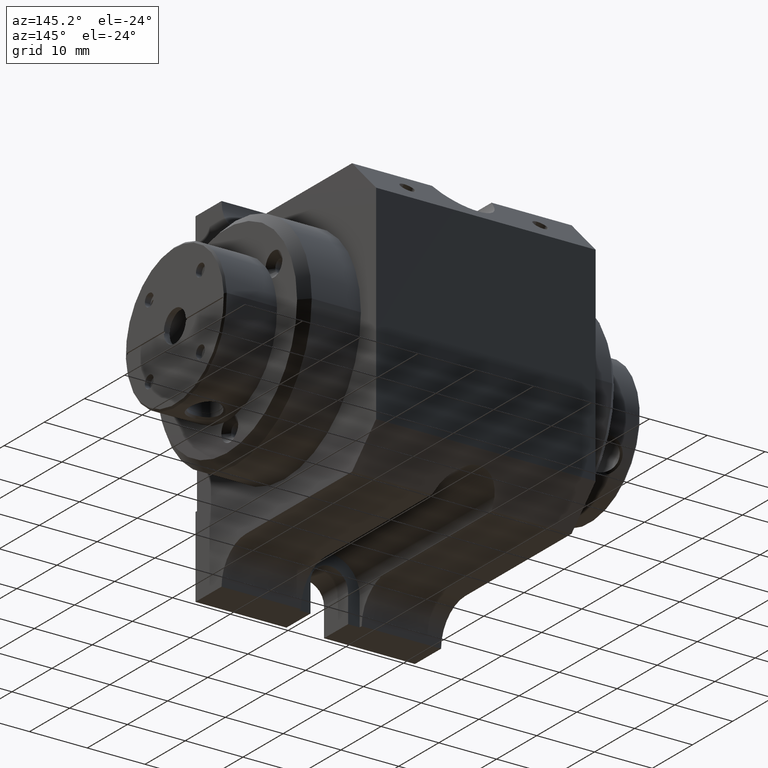
[diagram: clean part render]
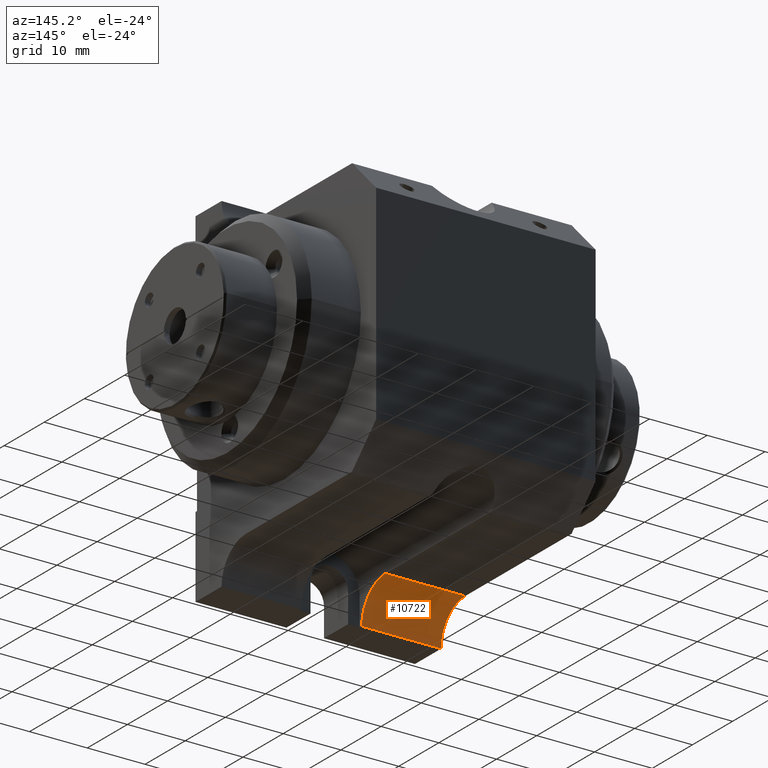
[diagram: same view with one face highlighted and labeled with its STEP entity id]
A machine part, auxiliary view. The second image highlights one B-rep face of the part: STEP entity #10722.
In plain terms, the highlighted cylindrical surface (partial cylindrical patch) has radius 6 mm, axis along (1, 0, 0).
Its self-contained STEP definition (entity closure, byte-faithful):
#79 = CARTESIAN_POINT ( 'NONE',  ( 20.33740049903875047, 9.566528206576277782, -20.51832528981267600 ) ) ;
#263 = VECTOR ( 'NONE', #7345, 1000.000000000000000 ) ;
#740 = CARTESIAN_POINT ( 'NONE',  ( 20.25002206792999360, 7.199067107084253792, -21.33604402028462488 ) ) ;
#845 = EDGE_CURVE ( 'NONE', #4344, #6833, #4483, .T. ) ;
#1096 = CARTESIAN_POINT ( 'NONE',  ( 20.34614003589999953, 10.31035723765000078, -20.47224762488000138 ) ) ;
#1291 = DIRECTION ( 'NONE',  ( 0.000000000000000000, 0.000000000000000000, 1.000000000000000000 ) ) ;
#1671 = DIRECTION ( 'NONE',  ( 1.000000000000000000, 0.000000000000000000, 0.000000000000000000 ) ) ;
#1716 = CYLINDRICAL_SURFACE ( 'NONE', #11092, 5.999999999999998224 ) ;
#2021 = CARTESIAN_POINT ( 'NONE',  ( 20.32676422547693207, 9.185849811624862582, -20.57672468930063658 ) ) ;
#2079 = DIRECTION ( 'NONE',  ( 1.000000000000000000, 0.000000000000000000, 0.000000000000000000 ) ) ;
#2311 = EDGE_CURVE ( 'NONE', #11326, #6833, #10374, .T. ) ;
#2490 = B_SPLINE_CURVE_WITH_KNOTS ( 'NONE', 3,
 ( #7284, #6621, #8792, #3020, #2755, #79, #4665, #10950, #4833, #9872, #4748, #2021, #4004, #5719, #10770, #10864, #7796, #5981, #12515, #3745, #11611, #10610, #2931, #3912, #7710, #8704, #6703, #4999, #5805, #6785, #9789, #5641, #7633, #9705, #12599, #740, #11870 ),
 .UNSPECIFIED., .F., .F.,
 ( 4, 2, 1, 1, 1, 2, 2, 2, 2, 1, 1, 1, 2, 2, 2, 2, 2, 1, 1, 1, 2, 2, 4 ),
 ( 0.000000000000000000, 0.1249999999999928391, 0.1874999999999891476, 0.2187499999999880373, 0.2343749999999882039, 0.2421874999999892308, 0.2499999999999902855, 0.3750000000000108247, 0.4375000000000214273, 0.4687500000000264233, 0.4843750000000285327, 0.4921875000000298650, 0.4960937500000295874, 0.5000000000000293099, 0.6250000000000031086, 0.6874999999999901190, 0.7187499999999834577, 0.7343749999999794609, 0.7421874999999754641, 0.7460937499999751310, 0.7480468749999747979, 0.7499999999999744649, 1.000000000000000000 ),
 .UNSPECIFIED. ) ;
#2690 = AXIS2_PLACEMENT_3D ( 'NONE', #3092, #6130, #1291 ) ;
#2755 = CARTESIAN_POINT ( 'NONE',  ( 20.34025102898273474, 9.696526904399146218, -20.50291406075663758 ) ) ;
#2863 = CARTESIAN_POINT ( 'NONE',  ( 6.500022067927000435, 4.310357237652999274, -26.47224762487999783 ) ) ;
#2931 = CARTESIAN_POINT ( 'NONE',  ( 20.28488944485601309, 8.160041158338053435, -20.86886200144706649 ) ) ;
#3020 = CARTESIAN_POINT ( 'NONE',  ( 20.34213049927548056, 9.806812806831551654, -20.49296725799527863 ) ) ;
#3092 = CARTESIAN_POINT ( 'NONE',  ( 6.500022067927000435, 10.31035723765000078, -26.47224762487999783 ) ) ;
#3739 = LINE ( 'NONE', #5863, #3774 ) ;
#3745 = CARTESIAN_POINT ( 'NONE',  ( 20.30333066680266541, 8.584236663846199988, -20.72589770460598402 ) ) ;
#3774 = VECTOR ( 'NONE', #4320, 1000.000000000000000 ) ;
#3912 = CARTESIAN_POINT ( 'NONE',  ( 20.27599018802462894, 7.955333782621837102, -20.95325206882744951 ) ) ;
#4004 = CARTESIAN_POINT ( 'NONE',  ( 20.31895603595184596, 8.969842779044588710, -20.62344878280552152 ) ) ;
#4016 = ORIENTED_EDGE ( 'NONE', *, *, #10827, .T. ) ;
#4320 = DIRECTION ( 'NONE',  ( 1.000000000000000000, 0.000000000000000000, 0.000000000000000000 ) ) ;
#4344 = VERTEX_POINT ( 'NONE', #2863 ) ;
#4483 = LINE ( 'NONE', #10577, #263 ) ;
#4665 = CARTESIAN_POINT ( 'NONE',  ( 20.33581078041613210, 9.501216098060480064, -20.52700466387139500 ) ) ;
#4748 = CARTESIAN_POINT ( 'NONE',  ( 20.33094844555457570, 9.317398758385513347, -20.55377372439675554 ) ) ;
#4833 = CARTESIAN_POINT ( 'NONE',  ( 20.33460870254140929, 9.454442409207779008, -20.53360306773303634 ) ) ;
#4999 = CARTESIAN_POINT ( 'NONE',  ( 20.26869333404466289, 7.783459756304201171, -21.03029196094754738 ) ) ;
#5641 = CARTESIAN_POINT ( 'NONE',  ( 20.26739978684227594, 7.751026003769890593, -21.04547838642213975 ) ) ;
#5719 = CARTESIAN_POINT ( 'NONE',  ( 20.31609799620869694, 8.894733441048664702, -20.64108079761912862 ) ) ;
#5805 = CARTESIAN_POINT ( 'NONE',  ( 20.26820284971287123, 7.771395122163428759, -21.03590846027943329 ) ) ;
#5863 = CARTESIAN_POINT ( 'NONE',  ( 6.500022067927000435, 10.31035723765000078, -20.47224762488000138 ) ) ;
#5981 = CARTESIAN_POINT ( 'NONE',  ( 20.30445019229906478, 8.610282390973702960, -20.71812290982287763 ) ) ;
#6130 = DIRECTION ( 'NONE',  ( 1.000000000000000000, 0.000000000000000000, 0.000000000000000000 ) ) ;
#6278 = ORIENTED_EDGE ( 'NONE', *, *, #845, .F. ) ;
#6314 = EDGE_LOOP ( 'NONE', ( #6278, #8294, #7902, #4016, #10277 ) ) ;
#6537 = AXIS2_PLACEMENT_3D ( 'NONE', #9837, #2079, #8019 ) ;
#6621 = CARTESIAN_POINT ( 'NONE',  ( 20.34614003589999953, 10.16935085193989252, -20.47224762487999783 ) ) ;
#6703 = CARTESIAN_POINT ( 'NONE',  ( 20.26976998313472578, 7.809624519992219405, -21.01819361042534240 ) ) ;
#6785 = CARTESIAN_POINT ( 'NONE',  ( 20.26771433836561442, 7.759090140330863861, -21.04168045742320103 ) ) ;
#6833 = VERTEX_POINT ( 'NONE', #9656 ) ;
#7284 = CARTESIAN_POINT ( 'NONE',  ( 20.34614003589999953, 10.31035723765000078, -20.47224762488000138 ) ) ;
#7306 = VERTEX_POINT ( 'NONE', #7893 ) ;
#7345 = DIRECTION ( 'NONE',  ( 1.000000000000000000, 0.000000000000000000, 0.000000000000000000 ) ) ;
#7633 = CARTESIAN_POINT ( 'NONE',  ( 20.26733996621804579, 7.749478250210375840, -21.04620859591265614 ) ) ;
#7710 = CARTESIAN_POINT ( 'NONE',  ( 20.27353406468873231, 7.898509561244231314, -20.97811316978689788 ) ) ;
#7738 = EDGE_CURVE ( 'NONE', #7306, #4344, #11315, .T. ) ;
#7796 = CARTESIAN_POINT ( 'NONE',  ( 20.30599379215163225, 8.646486959411687323, -20.70749755812092019 ) ) ;
#7893 = CARTESIAN_POINT ( 'NONE',  ( 6.500022067927000435, 10.31035723765000078, -20.47224762488000138 ) ) ;
#7902 = ORIENTED_EDGE ( 'NONE', *, *, #12509, .T. ) ;
#7930 = VERTEX_POINT ( 'NONE', #1096 ) ;
#8019 = DIRECTION ( 'NONE',  ( 0.000000000000000000, -0.5527707983926049007, 0.8333333333333079462 ) ) ;
#8294 = ORIENTED_EDGE ( 'NONE', *, *, #7738, .F. ) ;
#8704 = CARTESIAN_POINT ( 'NONE',  ( 20.27061532309675229, 7.829781144688310768, -21.00897270014546336 ) ) ;
#8792 = CARTESIAN_POINT ( 'NONE',  ( 20.34513765174387245, 10.02569242573083486, -20.47721895577920748 ) ) ;
#9656 = CARTESIAN_POINT ( 'NONE',  ( 20.25002206793000070, 4.310357237652999274, -26.47224762487999783 ) ) ;
#9705 = CARTESIAN_POINT ( 'NONE',  ( 20.26737153420813797, 7.750302759593482804, -21.04581898617349722 ) ) ;
#9789 = CARTESIAN_POINT ( 'NONE',  ( 20.26749101278528897, 7.753379108581857970, -21.04436883024647287 ) ) ;
#9837 = CARTESIAN_POINT ( 'NONE',  ( 20.25002206793000070, 10.31035723765000078, -26.47224762487999783 ) ) ;
#9872 = CARTESIAN_POINT ( 'NONE',  ( 20.33430911230593452, 9.443097370186707806, -20.53525207316486245 ) ) ;
#10277 = ORIENTED_EDGE ( 'NONE', *, *, #2311, .T. ) ;
#10374 = CIRCLE ( 'NONE', #6537, 6.000000000000000888 ) ;
#10537 = FACE_OUTER_BOUND ( 'NONE', #6314, .T. ) ;
#10577 = CARTESIAN_POINT ( 'NONE',  ( 6.500022067927000435, 4.310357237652999274, -26.47224762487999783 ) ) ;
#10610 = CARTESIAN_POINT ( 'NONE',  ( 20.29286346517521977, 8.342191039121333418, -20.79907784969725171 ) ) ;
#10722 = ADVANCED_FACE ( 'NONE', ( #10537 ), #1716, .F. ) ;
#10770 = CARTESIAN_POINT ( 'NONE',  ( 20.31142797174182490, 8.777631294883013524, -20.67118086870644689 ) ) ;
#10827 = EDGE_CURVE ( 'NONE', #7930, #11326, #2490, .T. ) ;
#10864 = CARTESIAN_POINT ( 'NONE',  ( 20.30899721829534954, 8.717971560877636250, -20.68714453214480997 ) ) ;
#10950 = CARTESIAN_POINT ( 'NONE',  ( 20.33509423236701963, 9.473160377519510789, -20.53093541400720312 ) ) ;
#11092 = AXIS2_PLACEMENT_3D ( 'NONE', #11405, #1671, #12485 ) ;
#11315 = CIRCLE ( 'NONE', #2690, 5.999999999999998224 ) ;
#11326 = VERTEX_POINT ( 'NONE', #12247 ) ;
#11405 = CARTESIAN_POINT ( 'NONE',  ( 6.387611790700000292, 10.31035723765000078, -26.47224762487999783 ) ) ;
#11611 = CARTESIAN_POINT ( 'NONE',  ( 20.30319164301199919, 8.581009757687226625, -20.72686561363383007 ) ) ;
#11870 = CARTESIAN_POINT ( 'NONE',  ( 20.25002206793000070, 6.993732447298000032, -21.47224762487999783 ) ) ;
#12247 = CARTESIAN_POINT ( 'NONE',  ( 20.25002206793000070, 6.993732447298000032, -21.47224762487999783 ) ) ;
#12485 = DIRECTION ( 'NONE',  ( 0.000000000000000000, 0.000000000000000000, 1.000000000000000000 ) ) ;
#12509 = EDGE_CURVE ( 'NONE', #7306, #7930, #3739, .T. ) ;
#12515 = CARTESIAN_POINT ( 'NONE',  ( 20.30377967376639248, 8.594667982482013358, -20.72277460370293056 ) ) ;
#12599 = CARTESIAN_POINT ( 'NONE',  ( 20.25577525882016516, 7.448340242771277708, -21.18843672800858968 ) ) ;